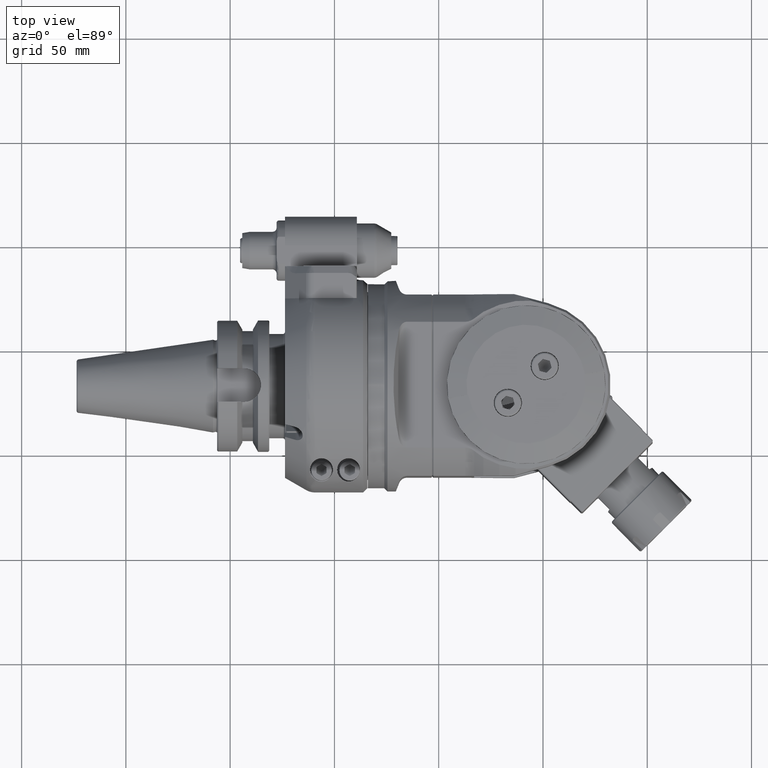
[diagram: clean part render]
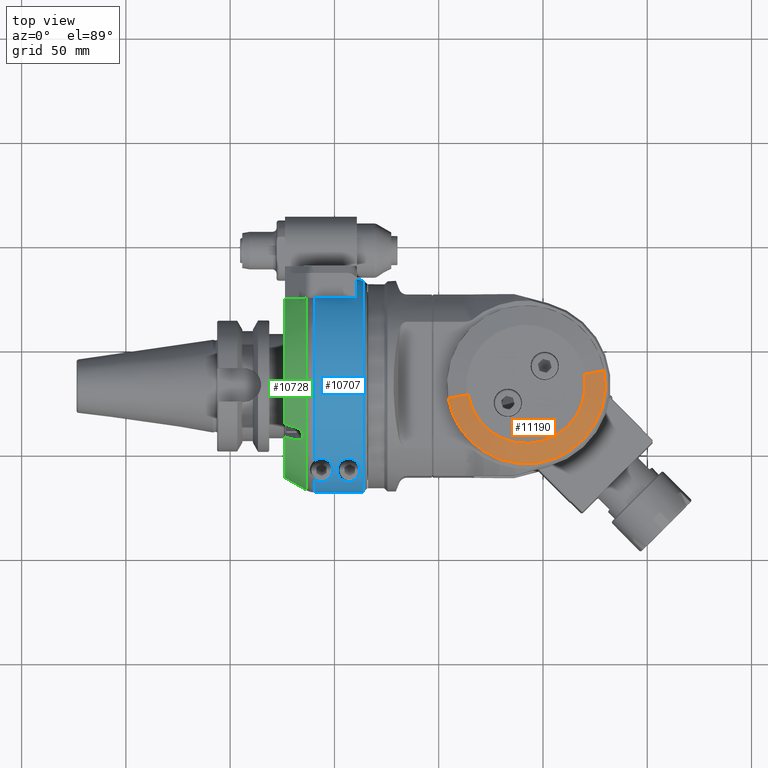
[diagram: same view with three faces highlighted in distinct colors, each labeled with its STEP entity id]
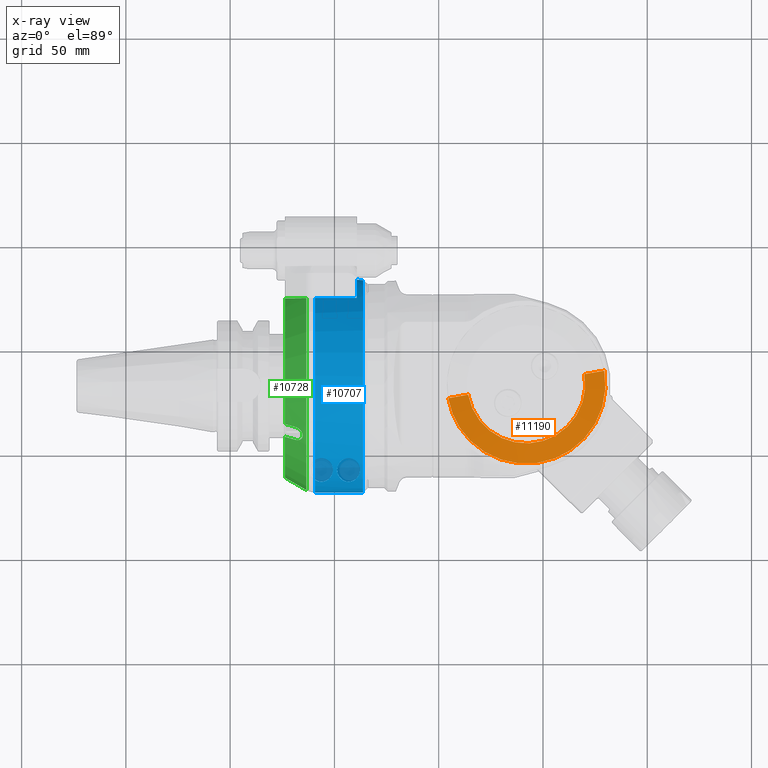
[diagram: x-ray of the same camera — body ghosted, the three highlighted faces saturated]
A machine part, top view with three faces highlighted in distinct colors.
The next image is the same camera in x-ray (body ghosted, the three faces saturated) — at least one of them is partly hidden behind the body in this view.
Their STEP definitions:

[orange] entity #11190 — the highlighted conical surface has half-angle 75 deg.
#873=CONICAL_SURFACE('',#12296,33.14175132528,1.30899693899575);
#1380=FACE_OUTER_BOUND('',#2114,.T.);
#2114=EDGE_LOOP('',(#9736,#9737,#9738,#9739,#9740));
#2695=CIRCLE('',#12293,38.);
#2697=CIRCLE('',#12295,38.);
#2698=CIRCLE('',#12297,28.28350265056);
#3510=LINE('',#49513,#4324);
#3511=LINE('',#49514,#4325);
#4324=VECTOR('',#14923,10.0592582628896);
#4325=VECTOR('',#14924,10.0592582628896);
#5361=VERTEX_POINT('',#49498);
#5362=VERTEX_POINT('',#49500);
#5365=VERTEX_POINT('',#49506);
#5366=VERTEX_POINT('',#49510);
#5367=VERTEX_POINT('',#49511);
#6866=EDGE_CURVE('',#5361,#5362,#2695,.T.);
#6870=EDGE_CURVE('',#5365,#5361,#2697,.T.);
#6871=EDGE_CURVE('',#5366,#5367,#2698,.T.);
#6872=EDGE_CURVE('',#5366,#5362,#3510,.T.);
#6873=EDGE_CURVE('',#5367,#5365,#3511,.T.);
#9736=ORIENTED_EDGE('',*,*,#6871,.F.);
#9737=ORIENTED_EDGE('',*,*,#6872,.T.);
#9738=ORIENTED_EDGE('',*,*,#6866,.F.);
#9739=ORIENTED_EDGE('',*,*,#6870,.F.);
#9740=ORIENTED_EDGE('',*,*,#6873,.F.);
#11190=ADVANCED_FACE('',(#1380),#873,.T.);
#12293=AXIS2_PLACEMENT_3D('',#49501,#14911,#14912);
#12295=AXIS2_PLACEMENT_3D('',#49508,#14917,#14918);
#12296=AXIS2_PLACEMENT_3D('',#49509,#14919,#14920);
#12297=AXIS2_PLACEMENT_3D('',#49512,#14921,#14922);
#14911=DIRECTION('center_axis',(0.,-1.,0.));
#14912=DIRECTION('ref_axis',(-0.707106781186547,0.,0.707106781186547));
#14917=DIRECTION('center_axis',(0.,-1.,0.));
#14918=DIRECTION('ref_axis',(-0.707106781186547,0.,0.707106781186547));
#14919=DIRECTION('center_axis',(0.,-1.,0.));
#14920=DIRECTION('ref_axis',(0.984807753012201,0.,-0.173648177666972));
#14921=DIRECTION('center_axis',(0.,1.,0.));
#14922=DIRECTION('ref_axis',(-0.984807753012201,0.,0.173648177666972));
#14923=DIRECTION('',(-0.9512512425642,-0.25881904510251,0.167731259496527));
#14924=DIRECTION('',(0.9512512425642,-0.25881904510251,-0.167731259496527));
#49498=CARTESIAN_POINT('',(80.1299423149118,43.89647238196,26.8700576850894));
#49500=CARTESIAN_POINT('',(69.5773053855377,43.89647238196,6.59863075134256));
#49501=CARTESIAN_POINT('Origin',(107.000000000001,43.89647238196,5.86197757002083E-13));
#49506=CARTESIAN_POINT('',(144.422694614435,43.89647238196,-6.5986307513697));
#49508=CARTESIAN_POINT('Origin',(107.000000000001,43.89647238196,5.86197757002083E-13));
#49509=CARTESIAN_POINT('Origin',(107.000000000001,45.19823619098,5.86197757002083E-13));
#49510=CARTESIAN_POINT('',(79.1461873073898,46.5,4.91137869331112));
#49511=CARTESIAN_POINT('',(134.85381269259,46.5,-4.91137869333115));
#49512=CARTESIAN_POINT('Origin',(107.000000000001,46.5,5.86197757002083E-13));
#49513=CARTESIAN_POINT('',(79.1461873073898,46.5,4.91137869331112));
#49514=CARTESIAN_POINT('',(134.85381269259,46.5,-4.91137869333115));

[blue] entity #10707 — the highlighted cylindrical surface (partial cylindrical patch) has radius 51 mm, axis along (1, 0, 0).
#102=FACE_BOUND('',#1566,.T.);
#897=FACE_OUTER_BOUND('',#1565,.T.);
#1565=EDGE_LOOP('',(#7303,#7304,#7305,#7306,#7307,#7308,#7309,#7310,#7311,
#7312,#7313));
#1566=EDGE_LOOP('',(#7314,#7315));
#2330=CIRCLE('',#11440,51.);
#2331=CIRCLE('',#11441,51.);
#2332=CIRCLE('',#11442,51.);
#2333=CIRCLE('',#11443,51.);
#2334=CIRCLE('',#11444,51.);
#2803=B_SPLINE_CURVE_WITH_KNOTS('',3,(#15746,#15747,#15748,#15749,#15750,
#15751,#15752,#15753,#15754,#15755,#15756,#15757,#15758,#15759,#15760,#15761,
#15762,#15763),.UNSPECIFIED.,.F.,.F.,(4,2,2,2,2,2,2,2,4),(1.24497996375057,
1.57211089183856,1.89924181992655,2.10031433028339,2.30138684064023,2.50245935099707,
2.70353186135391,3.0306627894419,3.35779371752989),.UNSPECIFIED.);
#2806=B_SPLINE_CURVE_WITH_KNOTS('',3,(#15841,#15842,#15843,#15844,#15845,
#15846),.UNSPECIFIED.,.F.,.F.,(4,2,4),(-0.351622839102922,-0.201072510356838,
0.),.UNSPECIFIED.);
#2807=B_SPLINE_CURVE_WITH_KNOTS('',3,(#15848,#15849,#15850,#15851,#15852,
#15853,#15854,#15855,#15856,#15857,#15858,#15859,#15860,#15861,#15862,#15863,
#15864,#15865,#15866,#15867,#15868,#15869,#15870,#15871,#15872,#15873),
 .UNSPECIFIED.,.F.,.F.,(4,2,2,2,2,2,2,2,2,2,2,2,4),(0.,0.201072510356838,
0.402145020713677,0.729275948801668,1.05640687688966,1.45814522272358,1.85988356855749,
2.08063520459886,2.19101102261954,2.30138684064023,2.41176265866091,2.52213847668159,
2.7154535046118),.UNSPECIFIED.);
#2808=B_SPLINE_CURVE_WITH_KNOTS('',3,(#15877,#15878,#15879,#15880,#15881,
#15882,#15883,#15884,#15885,#15886,#15887,#15888,#15889,#15890,#15891,#15892,
#15893,#15894,#15895,#15896,#15897,#15898,#15899),.UNSPECIFIED.,.F.,.F.,
(4,2,2,2,2,3,2,2,2,2,4),(-1.24497996375057,-0.843241617916652,-0.441503272082734,
-0.220751636041367,-0.110375818020684,0.,0.110375818020684,0.220751636041367,
0.441503272082734,0.843241617916652,1.24497996375057),.UNSPECIFIED.);
#2927=LINE('',#15784,#3741);
#2929=LINE('',#15788,#3743);
#2935=LINE('',#15835,#3749);
#2936=LINE('',#15876,#3750);
#3741=VECTOR('',#12620,20.23205080757);
#3743=VECTOR('',#12622,20.23205080757);
#3749=VECTOR('',#12634,23.23206191748);
#3750=VECTOR('',#12643,23.23206611221);
#4550=VERTEX_POINT('',#15742);
#4552=VERTEX_POINT('',#15745);
#4559=VERTEX_POINT('',#15782);
#4560=VERTEX_POINT('',#15783);
#4561=VERTEX_POINT('',#15785);
#4562=VERTEX_POINT('',#15787);
#4572=VERTEX_POINT('',#15831);
#4573=VERTEX_POINT('',#15832);
#4574=VERTEX_POINT('',#15834);
#4575=VERTEX_POINT('',#15838);
#4576=VERTEX_POINT('',#15840);
#4577=VERTEX_POINT('',#15847);
#4578=VERTEX_POINT('',#15874);
#5631=EDGE_CURVE('',#4552,#4550,#2803,.T.);
#5641=EDGE_CURVE('',#4559,#4560,#2927,.T.);
#5643=EDGE_CURVE('',#4562,#4561,#2929,.T.);
#5654=EDGE_CURVE('',#4572,#4573,#2330,.T.);
#5655=EDGE_CURVE('',#4572,#4574,#2935,.T.);
#5656=EDGE_CURVE('',#4562,#4574,#2331,.T.);
#5657=EDGE_CURVE('',#4559,#4561,#2332,.T.);
#5658=EDGE_CURVE('',#4575,#4560,#2333,.T.);
#5659=EDGE_CURVE('',#4575,#4576,#2806,.T.);
#5660=EDGE_CURVE('',#4576,#4577,#2807,.T.);
#5661=EDGE_CURVE('',#4578,#4577,#2334,.T.);
#5662=EDGE_CURVE('',#4578,#4573,#2936,.T.);
#5663=EDGE_CURVE('',#4550,#4552,#2808,.T.);
#7303=ORIENTED_EDGE('',*,*,#5654,.F.);
#7304=ORIENTED_EDGE('',*,*,#5655,.T.);
#7305=ORIENTED_EDGE('',*,*,#5656,.F.);
#7306=ORIENTED_EDGE('',*,*,#5643,.T.);
#7307=ORIENTED_EDGE('',*,*,#5657,.F.);
#7308=ORIENTED_EDGE('',*,*,#5641,.T.);
#7309=ORIENTED_EDGE('',*,*,#5658,.F.);
#7310=ORIENTED_EDGE('',*,*,#5659,.T.);
#7311=ORIENTED_EDGE('',*,*,#5660,.T.);
#7312=ORIENTED_EDGE('',*,*,#5661,.F.);
#7313=ORIENTED_EDGE('',*,*,#5662,.T.);
#7314=ORIENTED_EDGE('',*,*,#5663,.T.);
#7315=ORIENTED_EDGE('',*,*,#5631,.T.);
#10564=CYLINDRICAL_SURFACE('',#11439,51.);
#10707=ADVANCED_FACE('',(#897,#102),#10564,.T.);
#11439=AXIS2_PLACEMENT_3D('',#15830,#12630,#12631);
#11440=AXIS2_PLACEMENT_3D('',#15833,#12632,#12633);
#11441=AXIS2_PLACEMENT_3D('',#15836,#12635,#12636);
#11442=AXIS2_PLACEMENT_3D('',#15837,#12637,#12638);
#11443=AXIS2_PLACEMENT_3D('',#15839,#12639,#12640);
#11444=AXIS2_PLACEMENT_3D('',#15875,#12641,#12642);
#12620=DIRECTION('',(-1.,0.,0.));
#12622=DIRECTION('',(1.,0.,0.));
#12630=DIRECTION('center_axis',(1.,0.,0.));
#12631=DIRECTION('ref_axis',(0.,1.,1.05873409698834E-10));
#12632=DIRECTION('center_axis',(1.,0.,0.));
#12633=DIRECTION('ref_axis',(0.,1.,0.));
#12634=DIRECTION('',(-1.,-3.620724304585E-11,1.230523343791E-9));
#12635=DIRECTION('center_axis',(-1.,0.,0.));
#12636=DIRECTION('ref_axis',(0.,0.818627450980411,-0.574324904998308));
#12637=DIRECTION('center_axis',(-1.,0.,0.));
#12638=DIRECTION('ref_axis',(0.,1.,0.));
#12639=DIRECTION('center_axis',(-1.,0.,0.));
#12640=DIRECTION('ref_axis',(0.,-0.711205879844998,0.702983781088798));
#12641=DIRECTION('center_axis',(-1.,0.,0.));
#12642=DIRECTION('ref_axis',(0.,-0.999567380468613,0.0294117647058804));
#12643=DIRECTION('',(1.,4.9878538981E-11,1.695142412605E-9));
#15742=CARTESIAN_POINT('',(-15.5,-40.7216512827,30.70418728464));
#15745=CARTESIAN_POINT('',(-26.5,-40.7216512827,30.7041872846388));
#15746=CARTESIAN_POINT('Ctrl Pts',(-26.5,-40.7216512827,30.7041872846388));
#15747=CARTESIAN_POINT('Ctrl Pts',(-26.5,-40.0651617871045,31.5748612439451));
#15748=CARTESIAN_POINT('Ctrl Pts',(-26.3775309176086,-39.319256727814,32.5000944024137));
#15749=CARTESIAN_POINT('Ctrl Pts',(-25.7586754272403,-37.8511872002494,
34.1986505928683));
#15750=CARTESIAN_POINT('Ctrl Pts',(-25.2627488095064,-37.1297545962508,
34.9727734951554));
#15751=CARTESIAN_POINT('Ctrl Pts',(-24.149351972259,-36.1782586100401,35.9500095679527));
#15752=CARTESIAN_POINT('Ctrl Pts',(-23.6039156243507,-35.8317714924385,
36.2931969488346));
#15753=CARTESIAN_POINT('Ctrl Pts',(-22.364786222781,-35.3524177755747,36.760284817991));
#15754=CARTESIAN_POINT('Ctrl Pts',(-21.6702417011895,-35.2216512827,36.8840789626077));
#15755=CARTESIAN_POINT('Ctrl Pts',(-20.3297582988105,-35.2216512827,36.8840789626077));
#15756=CARTESIAN_POINT('Ctrl Pts',(-19.635213777219,-35.3524177755747,36.760284817991));
#15757=CARTESIAN_POINT('Ctrl Pts',(-18.3960843756493,-35.8317714924385,
36.2931969488346));
#15758=CARTESIAN_POINT('Ctrl Pts',(-17.850648027741,-36.1782586100401,35.9500095679527));
#15759=CARTESIAN_POINT('Ctrl Pts',(-16.7372511904936,-37.1297545962508,
34.9727734951554));
#15760=CARTESIAN_POINT('Ctrl Pts',(-16.2413245727597,-37.8511872002494,
34.1986505928683));
#15761=CARTESIAN_POINT('Ctrl Pts',(-15.6224690823914,-39.319256727814,32.5000944024137));
#15762=CARTESIAN_POINT('Ctrl Pts',(-15.5,-40.0651617871045,31.5748612439451));
#15763=CARTESIAN_POINT('Ctrl Pts',(-15.5,-40.7216512827,30.7041872846388));
#15782=CARTESIAN_POINT('',(-17.,41.75,29.29057015492));
#15783=CARTESIAN_POINT('',(-37.23205080757,41.75,29.29057015492));
#15784=CARTESIAN_POINT('',(-17.,41.75,29.29057015492));
#15785=CARTESIAN_POINT('',(-17.,41.75,-29.29057015492));
#15787=CARTESIAN_POINT('',(-37.23205080757,41.75,-29.29057015492));
#15788=CARTESIAN_POINT('',(-37.23205080757,41.75,-29.29057015492));
#15830=CARTESIAN_POINT('Origin',(-43.,0.,0.));
#15831=CARTESIAN_POINT('',(-14.,-50.9779364039,-1.5));
#15832=CARTESIAN_POINT('',(-14.,-50.9779364039,1.5));
#15833=CARTESIAN_POINT('Origin',(-14.,0.,0.));
#15834=CARTESIAN_POINT('',(-37.2320508150874,-50.9779364043201,-1.49999998570621));
#15835=CARTESIAN_POINT('',(-14.,-50.9779364039,-1.5));
#15836=CARTESIAN_POINT('Origin',(-37.23205080757,0.,0.));
#15837=CARTESIAN_POINT('Origin',(-17.,0.,0.));
#15838=CARTESIAN_POINT('',(-37.23205080757,-36.27149987209,35.85217283553));
#15839=CARTESIAN_POINT('Origin',(-37.23205080757,0.,0.));
#15840=CARTESIAN_POINT('',(-34.,-35.2216512827,36.8840789626077));
#15841=CARTESIAN_POINT('Ctrl Pts',(-37.2320508075659,-36.2714998720946,
35.8521728355289));
#15842=CARTESIAN_POINT('Ctrl Pts',(-36.872037357752,-36.0100297211167,36.116701141561));
#15843=CARTESIAN_POINT('Ctrl Pts',(-36.44824163253,-35.7715494474255,36.3518780139684));
#15844=CARTESIAN_POINT('Ctrl Pts',(-35.364786222781,-35.3524177755747,36.760284817991));
#15845=CARTESIAN_POINT('Ctrl Pts',(-34.6702417011895,-35.2216512827,36.8840789626077));
#15846=CARTESIAN_POINT('Ctrl Pts',(-34.,-35.2216512827,36.8840789626077));
#15847=CARTESIAN_POINT('',(-37.23205080757,-45.1718026933,23.67505525733));
#15848=CARTESIAN_POINT('Ctrl Pts',(-34.,-35.2216512827,36.8840789626077));
#15849=CARTESIAN_POINT('Ctrl Pts',(-33.3297582988105,-35.2216512827,36.8840789626077));
#15850=CARTESIAN_POINT('Ctrl Pts',(-32.635213777219,-35.3524177755747,36.760284817991));
#15851=CARTESIAN_POINT('Ctrl Pts',(-31.3960843756493,-35.8317714924385,
36.2931969488346));
#15852=CARTESIAN_POINT('Ctrl Pts',(-30.850648027741,-36.1782586100401,35.9500095679527));
#15853=CARTESIAN_POINT('Ctrl Pts',(-29.7372511904936,-37.1297545962508,
34.9727734951554));
#15854=CARTESIAN_POINT('Ctrl Pts',(-29.2413245727597,-37.8511872002494,
34.1986505928683));
#15855=CARTESIAN_POINT('Ctrl Pts',(-28.6224690823914,-39.319256727814,32.5000944024137));
#15856=CARTESIAN_POINT('Ctrl Pts',(-28.5,-40.0651617871045,31.5748612439451));
#15857=CARTESIAN_POINT('Ctrl Pts',(-28.5,-41.5278636624324,29.6349422633357));
#15858=CARTESIAN_POINT('Ctrl Pts',(-28.6828935944427,-42.355228362554,28.4428786872814));
#15859=CARTESIAN_POINT('Ctrl Pts',(-29.4026147018995,-43.8528254301532,
26.0747465478085));
#15860=CARTESIAN_POINT('Ctrl Pts',(-29.9314939989374,-44.5246315328702,
24.8972647332227));
#15861=CARTESIAN_POINT('Ctrl Pts',(-31.001270294294,-45.3572445916551,23.326334884601));
#15862=CARTESIAN_POINT('Ctrl Pts',(-31.480842706606,-45.6482368635351,22.7481982089167));
#15863=CARTESIAN_POINT('Ctrl Pts',(-32.3308258147761,-45.9710043968678,
22.0845481334827));
#15864=CARTESIAN_POINT('Ctrl Pts',(-32.6354867073276,-46.0599916909384,
21.8974583438779));
#15865=CARTESIAN_POINT('Ctrl Pts',(-33.286197560497,-46.1851905126261,21.6321449190877));
#15866=CARTESIAN_POINT('Ctrl Pts',(-33.6320806065977,-46.2216512827,21.5536296873747));
#15867=CARTESIAN_POINT('Ctrl Pts',(-34.3679193934023,-46.2216512827,21.5536296873747));
#15868=CARTESIAN_POINT('Ctrl Pts',(-34.713802439503,-46.1851905126261,21.6321449190877));
#15869=CARTESIAN_POINT('Ctrl Pts',(-35.3645132926724,-46.0599916909384,
21.8974583438779));
#15870=CARTESIAN_POINT('Ctrl Pts',(-35.6691741852239,-45.9710043968678,
22.0845481334827));
#15871=CARTESIAN_POINT('Ctrl Pts',(-36.4487292658961,-45.6749807840842,
22.6932093917128));
#15872=CARTESIAN_POINT('Ctrl Pts',(-36.8782785168307,-45.4287400225037,
23.1848210334514));
#15873=CARTESIAN_POINT('Ctrl Pts',(-37.2320508075737,-45.1718026932997,
23.6750552573295));
#15874=CARTESIAN_POINT('',(-37.2320508231036,-50.9779364044793,1.499999980309));
#15875=CARTESIAN_POINT('Origin',(-37.23205080757,0.,0.));
#15876=CARTESIAN_POINT('',(-37.23206611221,-50.97793640506,1.499999960618));
#15877=CARTESIAN_POINT('Ctrl Pts',(-15.5,-40.7216512827,30.7041872846388));
#15878=CARTESIAN_POINT('Ctrl Pts',(-15.5,-41.5278636624324,29.6349422633357));
#15879=CARTESIAN_POINT('Ctrl Pts',(-15.6828935944427,-42.355228362554,28.4428786872814));
#15880=CARTESIAN_POINT('Ctrl Pts',(-16.4026147018995,-43.8528254301532,
26.0747465478085));
#15881=CARTESIAN_POINT('Ctrl Pts',(-16.9314939989374,-44.5246315328702,
24.8972647332227));
#15882=CARTESIAN_POINT('Ctrl Pts',(-18.001270294294,-45.3572445916551,23.326334884601));
#15883=CARTESIAN_POINT('Ctrl Pts',(-18.480842706606,-45.6482368635351,22.7481982089167));
#15884=CARTESIAN_POINT('Ctrl Pts',(-19.3308258147761,-45.9710043968678,
22.0845481334827));
#15885=CARTESIAN_POINT('Ctrl Pts',(-19.6354867073276,-46.0599916909384,
21.8974583438779));
#15886=CARTESIAN_POINT('Ctrl Pts',(-20.286197560497,-46.1851905126261,21.6321449190877));
#15887=CARTESIAN_POINT('Ctrl Pts',(-20.6320806065977,-46.2216512827,21.5536296873747));
#15888=CARTESIAN_POINT('Ctrl Pts',(-21.,-46.2216512827,21.5536296873747));
#15889=CARTESIAN_POINT('Ctrl Pts',(-21.3679193934023,-46.2216512827,21.5536296873747));
#15890=CARTESIAN_POINT('Ctrl Pts',(-21.713802439503,-46.1851905126261,21.6321449190877));
#15891=CARTESIAN_POINT('Ctrl Pts',(-22.3645132926724,-46.0599916909384,
21.8974583438779));
#15892=CARTESIAN_POINT('Ctrl Pts',(-22.6691741852239,-45.9710043968678,
22.0845481334827));
#15893=CARTESIAN_POINT('Ctrl Pts',(-23.519157293394,-45.6482368635351,22.7481982089167));
#15894=CARTESIAN_POINT('Ctrl Pts',(-23.998729705706,-45.3572445916551,23.326334884601));
#15895=CARTESIAN_POINT('Ctrl Pts',(-25.0685060010626,-44.5246315328702,
24.8972647332227));
#15896=CARTESIAN_POINT('Ctrl Pts',(-25.5973852981005,-43.8528254301532,
26.0747465478085));
#15897=CARTESIAN_POINT('Ctrl Pts',(-26.3171064055573,-42.355228362554,28.4428786872814));
#15898=CARTESIAN_POINT('Ctrl Pts',(-26.5,-41.5278636624324,29.6349422633357));
#15899=CARTESIAN_POINT('Ctrl Pts',(-26.5,-40.7216512827,30.7041872846388));

[green] entity #10728 — the highlighted conical surface has half-angle 30 deg.
#200=(
BOUNDED_CURVE()
B_SPLINE_CURVE(2,(#15815,#15816,#15817),.UNSPECIFIED.,.F.,.F.)
B_SPLINE_CURVE_WITH_KNOTS((3,3),(-4.92391023083954,-2.81130786844121),
 .UNSPECIFIED.)
CURVE()
GEOMETRIC_REPRESENTATION_ITEM()
RATIONAL_B_SPLINE_CURVE((1.0074989594549,1.03062027413363,1.03252076511009))
REPRESENTATION_ITEM('')
);
#777=CONICAL_SURFACE('',#11485,46.96410161514,0.523598775598299);
#918=FACE_OUTER_BOUND('',#1591,.T.);
#1591=EDGE_LOOP('',(#7431,#7432,#7433,#7434,#7435,#7436,#7437,#7438));
#2355=CIRCLE('',#11486,49.92820323028);
#2356=CIRCLE('',#11487,44.);
#2357=CIRCLE('',#11488,44.);
#2817=B_SPLINE_CURVE_WITH_KNOTS('',3,(#16082,#16083,#16084,#16085,#16086,
#16087,#16088,#16089,#16090,#16091,#16092,#16093,#16094,#16095,#16096,#16097,
#16098,#16099),.UNSPECIFIED.,.F.,.F.,(4,2,2,2,2,2,2,2,4),(1.11206982951603,
1.24885677734264,1.4029266724495,1.5444028479349,1.68587902342029,1.82735519890569,
1.96883137439109,2.12290126949794,2.25968821731982),.UNSPECIFIED.);
#2819=B_SPLINE_CURVE_WITH_KNOTS('',3,(#16126,#16127,#16128,#16129,#16130,
#16131,#16132,#16133,#16134,#16135),.UNSPECIFIED.,.F.,.F.,(4,3,3,4),(0.,
0.3333333333333,0.6666666666667,1.),.UNSPECIFIED.);
#2821=B_SPLINE_CURVE_WITH_KNOTS('',3,(#16153,#16154,#16155,#16156,#16157,
#16158,#16159,#16160,#16161,#16162),.UNSPECIFIED.,.F.,.F.,(4,3,3,4),(0.,
0.3333333333333,0.6666666666667,1.),.UNSPECIFIED.);
#2822=B_SPLINE_CURVE_WITH_KNOTS('',3,(#16164,#16165,#16166,#16167,#16168,
#16169,#16170,#16171,#16172,#16173),.UNSPECIFIED.,.F.,.F.,(4,3,3,4),(0.,
0.3333333333333,0.6666666666667,1.),.UNSPECIFIED.);
#4569=VERTEX_POINT('',#15812);
#4570=VERTEX_POINT('',#15814);
#4611=VERTEX_POINT('',#16080);
#4612=VERTEX_POINT('',#16081);
#4617=VERTEX_POINT('',#16124);
#4618=VERTEX_POINT('',#16125);
#4621=VERTEX_POINT('',#16151);
#4622=VERTEX_POINT('',#16163);
#5651=EDGE_CURVE('',#4569,#4570,#200,.T.);
#5713=EDGE_CURVE('',#4611,#4612,#2817,.F.);
#5722=EDGE_CURVE('',#4617,#4618,#2819,.T.);
#5727=EDGE_CURVE('',#4570,#4618,#2355,.T.);
#5728=EDGE_CURVE('',#4621,#4569,#2356,.T.);
#5729=EDGE_CURVE('',#4621,#4612,#2821,.T.);
#5730=EDGE_CURVE('',#4611,#4622,#2822,.T.);
#5731=EDGE_CURVE('',#4617,#4622,#2357,.T.);
#7431=ORIENTED_EDGE('',*,*,#5727,.F.);
#7432=ORIENTED_EDGE('',*,*,#5651,.F.);
#7433=ORIENTED_EDGE('',*,*,#5728,.F.);
#7434=ORIENTED_EDGE('',*,*,#5729,.T.);
#7435=ORIENTED_EDGE('',*,*,#5713,.F.);
#7436=ORIENTED_EDGE('',*,*,#5730,.T.);
#7437=ORIENTED_EDGE('',*,*,#5731,.F.);
#7438=ORIENTED_EDGE('',*,*,#5722,.T.);
#10728=ADVANCED_FACE('',(#918),#777,.T.);
#11485=AXIS2_PLACEMENT_3D('',#16149,#12753,#12754);
#11486=AXIS2_PLACEMENT_3D('',#16150,#12755,#12756);
#11487=AXIS2_PLACEMENT_3D('',#16152,#12757,#12758);
#11488=AXIS2_PLACEMENT_3D('',#16174,#12759,#12760);
#12753=DIRECTION('center_axis',(1.,0.,0.));
#12754=DIRECTION('ref_axis',(0.,-1.,0.));
#12755=DIRECTION('center_axis',(1.,0.,0.));
#12756=DIRECTION('ref_axis',(0.,0.836200730225418,0.548423503116412));
#12757=DIRECTION('center_axis',(-1.,0.,0.));
#12758=DIRECTION('ref_axis',(0.,-0.429527235513105,0.90305390423411));
#12759=DIRECTION('center_axis',(-1.,0.,0.));
#12760=DIRECTION('ref_axis',(0.,-0.999418736024773,0.0340909090909091));
#15812=CARTESIAN_POINT('',(-51.5,41.75,13.89019438309));
#15814=CARTESIAN_POINT('',(-41.23205080757,41.75,27.38180011986));
#15815=CARTESIAN_POINT('Ctrl Pts',(-51.4999999999926,41.75,13.8901943831015));
#15816=CARTESIAN_POINT('Ctrl Pts',(-48.0442956678849,41.75,20.2102413125831));
#15817=CARTESIAN_POINT('Ctrl Pts',(-41.2320508075673,41.75,27.3818001198562));
#16080=CARTESIAN_POINT('',(-46.49999999996,-26.40905638146,38.74182743265));
#16081=CARTESIAN_POINT('',(-46.5,-20.34687855495,42.24182743261));
#16082=CARTESIAN_POINT('Ctrl Pts',(-46.5000000000022,-20.3468785549539,
42.2418274326121));
#16083=CARTESIAN_POINT('Ctrl Pts',(-46.0992085079171,-20.4629008008145,
42.4427838572514));
#16084=CARTESIAN_POINT('Ctrl Pts',(-45.6780271021369,-20.6496060415951,
42.6229397461814));
#16085=CARTESIAN_POINT('Ctrl Pts',(-44.8336229766582,-21.1765134567461,
42.9080443216851));
#16086=CARTESIAN_POINT('Ctrl Pts',(-44.416786404141,-21.5338827677997,43.000036123302));
#16087=CARTESIAN_POINT('Ctrl Pts',(-43.7689100689263,-22.2748250788787,
43.0423244163336));
#16088=CARTESIAN_POINT('Ctrl Pts',(-43.4858969585476,-22.7012115036421,
43.0050112903121));
#16089=CARTESIAN_POINT('Ctrl Pts',(-43.1011571537055,-23.5864558934365,
42.779754686541));
#16090=CARTESIAN_POINT('Ctrl Pts',(-43.,-24.0453321040545,42.5909113923236));
#16091=CARTESIAN_POINT('Ctrl Pts',(-43.,-24.8621451840586,42.1193241407056));
#16092=CARTESIAN_POINT('Ctrl Pts',(-43.1011571537054,-25.2551263794943,
41.8163473322267));
#16093=CARTESIAN_POINT('Ctrl Pts',(-43.4858969585476,-25.8928265156274,
41.1623315039927));
#16094=CARTESIAN_POINT('Ctrl Pts',(-43.7689100689263,-26.1383338430383,
40.8117265913295));
#16095=CARTESIAN_POINT('Ctrl Pts',(-44.416786404141,-26.4721822625297,40.1489075806805));
#16096=CARTESIAN_POINT('Ctrl Pts',(-44.8336229766582,-26.5711996809163,
39.7934207779667));
#16097=CARTESIAN_POINT('Ctrl Pts',(-45.6780271021231,-26.5877455833702,
39.1945532832615));
#16098=CARTESIAN_POINT('Ctrl Pts',(-46.0992085078879,-26.5250786273105,
38.9427838572684));
#16099=CARTESIAN_POINT('Ctrl Pts',(-46.4999999999604,-26.409056381457,38.7418274326329));
#16124=CARTESIAN_POINT('',(-51.5,-43.97442438509,1.5));
#16125=CARTESIAN_POINT('',(-41.2320587089715,-49.9056612221311,1.50000006858959));
#16126=CARTESIAN_POINT('Ctrl Pts',(-51.5,-43.97442438509,1.5));
#16127=CARTESIAN_POINT('Ctrl Pts',(-50.3591242554,-44.63349239584,1.5));
#16128=CARTESIAN_POINT('Ctrl Pts',(-49.2182445912652,-45.2925454352499,
1.5));
#16129=CARTESIAN_POINT('Ctrl Pts',(-48.0773635402228,-45.9515842405682,
1.5));
#16130=CARTESIAN_POINT('Ctrl Pts',(-46.9364824891801,-46.6106230458866,
1.5));
#16131=CARTESIAN_POINT('Ctrl Pts',(-45.7956000512299,-47.2696476171134,
1.5));
#16132=CARTESIAN_POINT('Ctrl Pts',(-44.6547122553372,-47.9286620207944,
1.5));
#16133=CARTESIAN_POINT('Ctrl Pts',(-43.5138244594448,-48.5876764244751,
1.5));
#16134=CARTESIAN_POINT('Ctrl Pts',(-42.37293130561,-49.24668066061,1.5));
#16135=CARTESIAN_POINT('Ctrl Pts',(-41.23206660847,-49.90565666041,1.5));
#16149=CARTESIAN_POINT('Origin',(-46.36602540378,0.,0.));
#16150=CARTESIAN_POINT('Origin',(-41.23205080757,0.,0.));
#16151=CARTESIAN_POINT('',(-51.5,-18.89919836257,39.7343717863));
#16152=CARTESIAN_POINT('Origin',(-51.5,0.,0.));
#16153=CARTESIAN_POINT('Ctrl Pts',(-51.5000000000014,-18.8991983625711,
39.7343717863022));
#16154=CARTESIAN_POINT('Ctrl Pts',(-50.9444542650933,-19.0600803989624,
40.0130276473551));
#16155=CARTESIAN_POINT('Ctrl Pts',(-50.388904658883,-19.2209523393287,40.2916660666116));
#16156=CARTESIAN_POINT('Ctrl Pts',(-49.8333517949314,-19.3818147452656,
40.5702879469609));
#16157=CARTESIAN_POINT('Ctrl Pts',(-49.2777989309796,-19.5426771512026,
40.8489098273103));
#16158=CARTESIAN_POINT('Ctrl Pts',(-48.7222428089151,-19.7035300221847,
41.12751516829));
#16159=CARTESIAN_POINT('Ctrl Pts',(-48.1666839961689,-19.8643738399584,
41.4061048113134));
#16160=CARTESIAN_POINT('Ctrl Pts',(-47.6111251834229,-20.0252176577319,
41.6846944543368));
#16161=CARTESIAN_POINT('Ctrl Pts',(-47.0555636796713,-20.186052421901,41.963268398972));
#16162=CARTESIAN_POINT('Ctrl Pts',(-46.5000000000021,-20.3468785549516,
42.2418274326133));
#16163=CARTESIAN_POINT('',(-51.5,-24.96137618907,36.2343717863));
#16164=CARTESIAN_POINT('Ctrl Pts',(-46.4999999999533,-26.4090563814534,
38.7418274326404));
#16165=CARTESIAN_POINT('Ctrl Pts',(-47.0555636796356,-26.2482302483957,
38.4632683989937));
#16166=CARTESIAN_POINT('Ctrl Pts',(-47.6111251834248,-26.0873955175853,
38.1846944350734));
#16167=CARTESIAN_POINT('Ctrl Pts',(-48.1666839961872,-25.9265517183778,
37.9061047813199));
#16168=CARTESIAN_POINT('Ctrl Pts',(-48.7222428089498,-25.7657079191702,
37.6275151275664));
#16169=CARTESIAN_POINT('Ctrl Pts',(-49.2777989310094,-25.6048550517416,
37.3489097845386));
#16170=CARTESIAN_POINT('Ctrl Pts',(-49.8333517949564,-25.4439926282768,
37.0702879143124));
#16171=CARTESIAN_POINT('Ctrl Pts',(-50.3889046589031,-25.283130204812,36.7916660440862));
#16172=CARTESIAN_POINT('Ctrl Pts',(-50.9444542651086,-25.1222582254486,
36.5130276473481));
#16173=CARTESIAN_POINT('Ctrl Pts',(-51.4999999999959,-24.9613761890659,
36.2343717863041));
#16174=CARTESIAN_POINT('Origin',(-51.5,0.,0.));